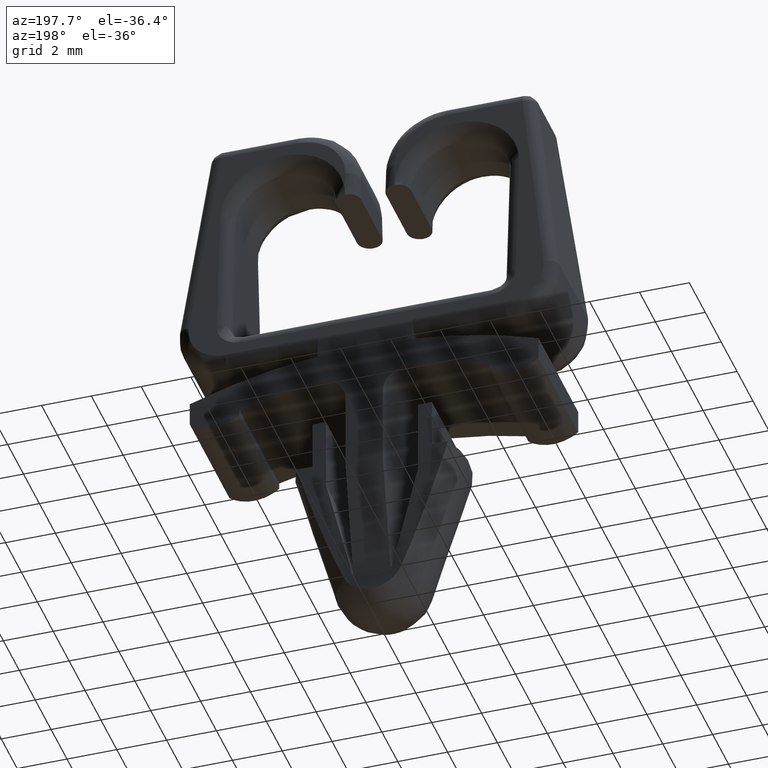
[diagram: clean part render]
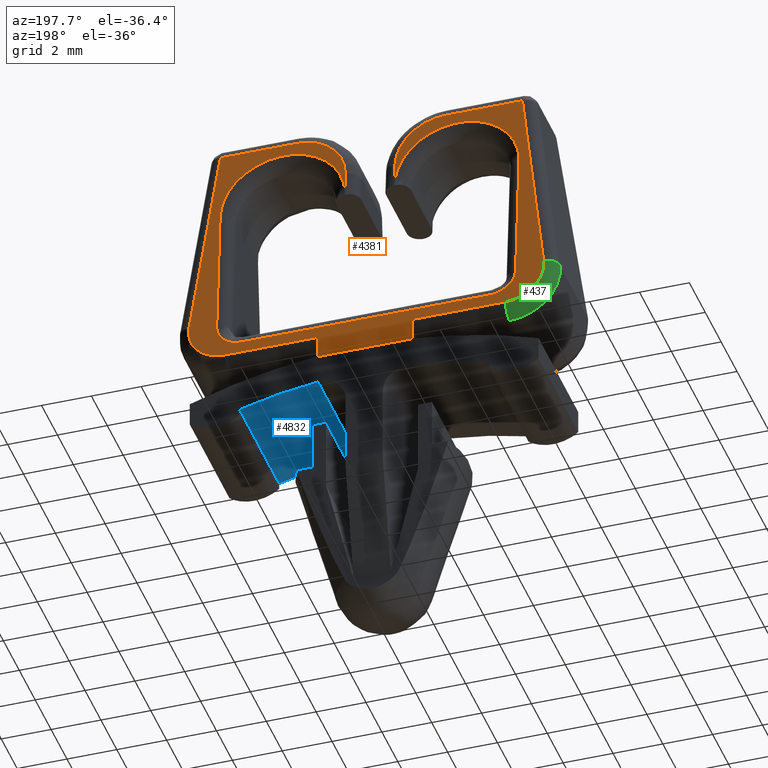
[diagram: same view with three faces highlighted in distinct colors, each labeled with its STEP entity id]
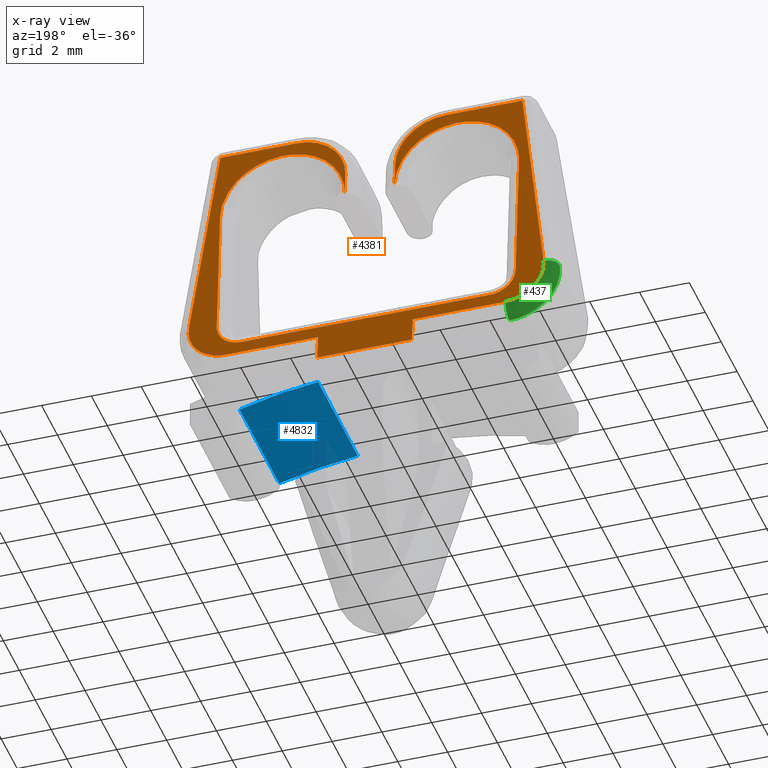
[diagram: x-ray of the same camera — body ghosted, the three highlighted faces saturated]
A machine part, auxiliary view with three faces highlighted in distinct colors.
The next image is the same camera in x-ray (body ghosted, the three faces saturated) — at least one of them is partly hidden behind the body in this view.
Their STEP definitions:

[orange] entity #4381 — the highlighted face is a freeform B-spline surface patch.
#58=CARTESIAN_POINT('',(-1.000000000000014,1.817478079133525,6.038521504060430));
#59=VERTEX_POINT('',#58);
#67=CARTESIAN_POINT('',(-1.000000000000028,1.740205398863250,7.038521504060429));
#68=VERTEX_POINT('',#67);
#69=CARTESIAN_POINT('',(-1.000000000000028,1.740205398863250,7.038521504060429));
#70=CARTESIAN_POINT('',(-1.000000000000014,1.817478079133525,6.038521504060430));
#71=QUASI_UNIFORM_CURVE('',1,(#69,#70),.UNSPECIFIED.,.F.,.U.);
#72=EDGE_CURVE('',#68,#59,#71,.T.);
#150=CARTESIAN_POINT('',(-3.0,1.585660038322590,9.038521504060530));
#151=VERTEX_POINT('',#150);
#183=CARTESIAN_POINT('',(-3.0,1.585660038322590,9.038521504060530));
#184=CARTESIAN_POINT('',(-2.171572875253808,1.585660038322517,9.038521504060428));
#185=CARTESIAN_POINT('',(-1.585786437626903,1.630925326423954,8.452735066433521));
#186=CARTESIAN_POINT('',(-1.0,1.676190614525392,7.866948628806616));
#187=CARTESIAN_POINT('',(-1.000000000000028,1.740205398863250,7.038521504060429));
#195=(BOUNDED_CURVE()B_SPLINE_CURVE(2,(#183,#184,#185,#186,#187),.UNSPECIFIED.,.F.,.U.)B_SPLINE_CURVE_WITH_KNOTS((3,2,3),(0.0,0.500000000000000,1.0),.UNSPECIFIED.)CURVE()GEOMETRIC_REPRESENTATION_ITEM()RATIONAL_B_SPLINE_CURVE((1.0,0.923879532511287,1.0,0.923879532511287,1.0))REPRESENTATION_ITEM(''));
#196=EDGE_CURVE('',#151,#68,#195,.T.);
#215=CARTESIAN_POINT('',(-6.059603151179149,1.585660036844620,9.038521523187201));
#216=VERTEX_POINT('',#215);
#238=CARTESIAN_POINT('',(-6.059603151179149,1.585660036844620,9.038521523187201));
#239=CARTESIAN_POINT('',(-3.0,1.585660038322590,9.038521504060530));
#240=QUASI_UNIFORM_CURVE('',1,(#238,#239),.UNSPECIFIED.,.F.,.U.);
#241=EDGE_CURVE('',#216,#151,#240,.T.);
#316=CARTESIAN_POINT('',(-7.117317814101700,2.227843778269155,0.727903343800175));
#317=VERTEX_POINT('',#316);
#339=CARTESIAN_POINT('',(-7.117317814101700,2.227843778269155,0.727903343800175));
#340=CARTESIAN_POINT('',(-6.059603151179149,1.585660036844620,9.038521523187201));
#341=QUASI_UNIFORM_CURVE('',1,(#339,#340),.UNSPECIFIED.,.F.,.U.);
#342=EDGE_CURVE('',#317,#216,#341,.T.);
#385=CARTESIAN_POINT('',(-5.629321000000000,2.358386841025865,-0.961478495939569));
#386=VERTEX_POINT('',#385);
#420=CARTESIAN_POINT('',(-5.629321000000000,2.358386841025865,-0.961478495939569));
#421=CARTESIAN_POINT('',(-6.307016277235701,2.358386841025810,-0.961478495939571));
#422=CARTESIAN_POINT('',(-6.754948105130632,2.319089449952488,-0.452923713889223));
#423=CARTESIAN_POINT('',(-7.202879933025565,2.279792058879166,0.055631068161125));
#424=CARTESIAN_POINT('',(-7.117317814101700,2.227843778269155,0.727903343800175));
#432=(BOUNDED_CURVE()B_SPLINE_CURVE(2,(#420,#421,#422,#423,#424),.UNSPECIFIED.,.F.,.U.)B_SPLINE_CURVE_WITH_KNOTS((3,2,3),(0.0,0.500000000000000,1.0),.UNSPECIFIED.)CURVE()GEOMETRIC_REPRESENTATION_ITEM()RATIONAL_B_SPLINE_CURVE((1.0,0.911307708360108,1.0,0.911307708360108,1.0))REPRESENTATION_ITEM(''));
#433=EDGE_CURVE('',#386,#317,#432,.T.);
#454=CARTESIAN_POINT('',(-1.900000000000000,2.358386841025865,-0.961478495939569));
#455=VERTEX_POINT('',#454);
#477=CARTESIAN_POINT('',(-1.900000000000000,2.358386841025865,-0.961478495939569));
#478=CARTESIAN_POINT('',(-5.629321000000000,2.358386841025865,-0.961478495939569));
#479=QUASI_UNIFORM_CURVE('',1,(#477,#478),.UNSPECIFIED.,.F.,.U.);
#480=EDGE_CURVE('',#455,#386,#479,.T.);
#593=CARTESIAN_POINT('',(6.0,1.817478079133575,6.038521504060430));
#594=VERTEX_POINT('',#593);
#654=CARTESIAN_POINT('',(1.0,1.817478079133525,6.038521504060430));
#655=VERTEX_POINT('',#654);
#669=CARTESIAN_POINT('',(6.0,1.817478079133575,6.038521504060430));
#670=CARTESIAN_POINT('',(6.0,1.624296378457708,8.538521504060432));
#671=CARTESIAN_POINT('',(3.500000000000000,1.624296378457708,8.538521504060432));
#672=CARTESIAN_POINT('',(1.0,1.624296378457708,8.538521504060432));
#673=CARTESIAN_POINT('',(1.0,1.817478079133525,6.038521504060431));
#681=(BOUNDED_CURVE()B_SPLINE_CURVE(2,(#669,#670,#671,#672,#673),.UNSPECIFIED.,.F.,.U.)B_SPLINE_CURVE_WITH_KNOTS((3,2,3),(0.0,0.500000000000000,1.0),.UNSPECIFIED.)CURVE()GEOMETRIC_REPRESENTATION_ITEM()RATIONAL_B_SPLINE_CURVE((1.0,0.707106781186547,1.0,0.707106781186547,1.0))REPRESENTATION_ITEM(''));
#682=EDGE_CURVE('',#594,#655,#681,.T.);
#701=CARTESIAN_POINT('',(6.0,2.242477820620375,0.538521504060430));
#702=VERTEX_POINT('',#701);
#726=CARTESIAN_POINT('',(6.0,2.242477820620375,0.538521504060430));
#727=CARTESIAN_POINT('',(6.0,1.817478079133575,6.038521504060430));
#728=QUASI_UNIFORM_CURVE('',1,(#726,#727),.UNSPECIFIED.,.F.,.U.);
#729=EDGE_CURVE('',#702,#594,#728,.T.);
#940=CARTESIAN_POINT('',(5.0,2.319750500890700,-0.461478495939572));
#941=VERTEX_POINT('',#940);
#971=CARTESIAN_POINT('',(5.0,2.319750500890700,-0.461478495939572));
#972=CARTESIAN_POINT('',(6.0,2.319750500890647,-0.461478495939572));
#973=CARTESIAN_POINT('',(6.0,2.242477820620375,0.538521504060430));
#981=(BOUNDED_CURVE()B_SPLINE_CURVE(2,(#971,#972,#973),.UNSPECIFIED.,.F.,.U.)CURVE()GEOMETRIC_REPRESENTATION_ITEM()QUASI_UNIFORM_CURVE()RATIONAL_B_SPLINE_CURVE((1.0,0.707106781186548,1.0))REPRESENTATION_ITEM(''));
#982=EDGE_CURVE('',#941,#702,#981,.T.);
#1001=CARTESIAN_POINT('',(-5.0,2.319750500890700,-0.461478495939574));
#1002=VERTEX_POINT('',#1001);
#1024=CARTESIAN_POINT('',(-5.0,2.319750500890700,-0.461478495939574));
#1025=CARTESIAN_POINT('',(5.0,2.319750500890700,-0.461478495939572));
#1026=QUASI_UNIFORM_CURVE('',1,(#1024,#1025),.UNSPECIFIED.,.F.,.U.);
#1027=EDGE_CURVE('',#1002,#941,#1026,.T.);
#1334=CARTESIAN_POINT('',(-6.0,2.242477820620375,0.538521504060431));
#1335=VERTEX_POINT('',#1334);
#1369=CARTESIAN_POINT('',(-6.0,2.242477820620375,0.538521504060431));
#1370=CARTESIAN_POINT('',(-5.999999999999999,2.319750500890647,-0.461478495939572));
#1371=CARTESIAN_POINT('',(-5.0,2.319750500890700,-0.461478495939574));
#1379=(BOUNDED_CURVE()B_SPLINE_CURVE(2,(#1369,#1370,#1371),.UNSPECIFIED.,.F.,.U.)CURVE()GEOMETRIC_REPRESENTATION_ITEM()QUASI_UNIFORM_CURVE()RATIONAL_B_SPLINE_CURVE((1.0,0.707106781186547,1.0))REPRESENTATION_ITEM(''));
#1380=EDGE_CURVE('',#1335,#1002,#1379,.T.);
#1399=CARTESIAN_POINT('',(-6.0,1.817478079133575,6.038521504060430));
#1400=VERTEX_POINT('',#1399);
#1424=CARTESIAN_POINT('',(-6.0,1.817478079133575,6.038521504060430));
#1425=CARTESIAN_POINT('',(-6.0,2.242477820620375,0.538521504060431));
#1426=QUASI_UNIFORM_CURVE('',1,(#1424,#1425),.UNSPECIFIED.,.F.,.U.);
#1427=EDGE_CURVE('',#1400,#1335,#1426,.T.);
#1583=CARTESIAN_POINT('',(-1.000000000000014,1.817478079133525,6.038521504060430));
#1584=CARTESIAN_POINT('',(-1.000000268634503,1.624296368078655,8.538521638377675));
#1585=CARTESIAN_POINT('',(-3.500000134317255,1.624296378457708,8.538521504060428));
#1586=CARTESIAN_POINT('',(-6.000000000000001,1.624296388836762,8.538521369743181));
#1587=CARTESIAN_POINT('',(-6.0,1.817478079133575,6.038521504060430));
#1595=(BOUNDED_CURVE()B_SPLINE_CURVE(2,(#1583,#1584,#1585,#1586,#1587),.UNSPECIFIED.,.F.,.U.)B_SPLINE_CURVE_WITH_KNOTS((3,2,3),(0.0,0.500000000000000,1.0),.UNSPECIFIED.)CURVE()GEOMETRIC_REPRESENTATION_ITEM()RATIONAL_B_SPLINE_CURVE((1.0,0.707106800181875,1.0,0.707106800181875,1.0))REPRESENTATION_ITEM(''));
#1596=EDGE_CURVE('',#59,#1400,#1595,.T.);
#1628=CARTESIAN_POINT('',(1.900000000000000,2.358386841025865,-0.961478495939569));
#1629=VERTEX_POINT('',#1628);
#1647=CARTESIAN_POINT('',(5.629321000000000,2.358386841025865,-0.961478495939573));
#1648=VERTEX_POINT('',#1647);
#1649=CARTESIAN_POINT('',(5.629321000000000,2.358386841025865,-0.961478495939573));
#1650=CARTESIAN_POINT('',(1.900000000000000,2.358386841025865,-0.961478495939569));
#1651=QUASI_UNIFORM_CURVE('',1,(#1649,#1650),.UNSPECIFIED.,.F.,.U.);
#1652=EDGE_CURVE('',#1648,#1629,#1651,.T.);
#1717=CARTESIAN_POINT('',(7.117318095254539,2.227843807725900,0.727902962595022));
#1718=VERTEX_POINT('',#1717);
#1750=CARTESIAN_POINT('',(7.117318095254539,2.227843807725900,0.727902962595022));
#1751=CARTESIAN_POINT('',(7.202879794710290,2.279792081162346,0.055630779790372));
#1752=CARTESIAN_POINT('',(6.754947978133050,2.319089461094078,-0.452923858074600));
#1753=CARTESIAN_POINT('',(6.307016161555812,2.358386841025809,-0.961478495939571));
#1754=CARTESIAN_POINT('',(5.629321000000000,2.358386841025865,-0.961478495939573));
#1762=(BOUNDED_CURVE()B_SPLINE_CURVE(2,(#1750,#1751,#1752,#1753,#1754),.UNSPECIFIED.,.F.,.U.)B_SPLINE_CURVE_WITH_KNOTS((3,2,3),(0.0,0.500000000000000,1.0),.UNSPECIFIED.)CURVE()GEOMETRIC_REPRESENTATION_ITEM()RATIONAL_B_SPLINE_CURVE((1.0,0.911307734729790,1.0,0.911307734729790,1.0))REPRESENTATION_ITEM(''));
#1763=EDGE_CURVE('',#1718,#1648,#1762,.T.);
#1782=CARTESIAN_POINT('',(6.059603000000000,1.585660038322590,9.038521504060530));
#1783=VERTEX_POINT('',#1782);
#1805=CARTESIAN_POINT('',(6.059603000000000,1.585660038322590,9.038521504060530));
#1806=CARTESIAN_POINT('',(7.117318095254539,2.227843807725900,0.727902962595022));
#1807=QUASI_UNIFORM_CURVE('',1,(#1805,#1806),.UNSPECIFIED.,.F.,.U.);
#1808=EDGE_CURVE('',#1783,#1718,#1807,.T.);
#1883=CARTESIAN_POINT('',(2.999999999999960,1.585660038322595,9.038521504060432));
#1884=VERTEX_POINT('',#1883);
#1906=CARTESIAN_POINT('',(2.999999999999960,1.585660038322595,9.038521504060432));
#1907=CARTESIAN_POINT('',(6.059603000000000,1.585660038322590,9.038521504060530));
#1908=QUASI_UNIFORM_CURVE('',1,(#1906,#1907),.UNSPECIFIED.,.F.,.U.);
#1909=EDGE_CURVE('',#1884,#1783,#1908,.T.);
#1952=CARTESIAN_POINT('',(0.999999999999958,1.740205398863250,7.038521504060429));
#1953=VERTEX_POINT('',#1952);
#1985=CARTESIAN_POINT('',(0.999999999999958,1.740205398863250,7.038521504060429));
#1986=CARTESIAN_POINT('',(0.999999999999960,1.676190614525392,7.866948628806617));
#1987=CARTESIAN_POINT('',(1.585786437626862,1.630925326423954,8.452735066433519));
#1988=CARTESIAN_POINT('',(2.171572875253768,1.585660038322517,9.038521504060428));
#1989=CARTESIAN_POINT('',(2.999999999999960,1.585660038322595,9.038521504060432));
#1997=(BOUNDED_CURVE()B_SPLINE_CURVE(2,(#1985,#1986,#1987,#1988,#1989),.UNSPECIFIED.,.F.,.U.)B_SPLINE_CURVE_WITH_KNOTS((3,2,3),(0.0,0.500000000000000,1.0),.UNSPECIFIED.)CURVE()GEOMETRIC_REPRESENTATION_ITEM()RATIONAL_B_SPLINE_CURVE((1.0,0.923879532511295,1.0,0.923879532511295,1.0))REPRESENTATION_ITEM(''));
#1998=EDGE_CURVE('',#1953,#1884,#1997,.T.);
#2042=CARTESIAN_POINT('',(1.0,1.817478079133525,6.038521504060430));
#2043=CARTESIAN_POINT('',(0.999999999999958,1.740205398863250,7.038521504060429));
#2044=QUASI_UNIFORM_CURVE('',1,(#2042,#2043),.UNSPECIFIED.,.F.,.U.);
#2045=EDGE_CURVE('',#655,#1953,#2044,.T.);
#4320=CARTESIAN_POINT('',(-1.899990384634840,2.437559000000000,-1.986059999999910));
#4321=VERTEX_POINT('',#4320);
#4327=CARTESIAN_POINT('',(1.900011192317365,2.437559000000000,-1.986059999999910));
#4328=VERTEX_POINT('',#4327);
#4329=CARTESIAN_POINT('',(1.900011192317365,2.437559000000000,-1.986059999999910));
#4330=CARTESIAN_POINT('',(-1.899990384634840,2.437559000000000,-1.986059999999910));
#4331=QUASI_UNIFORM_CURVE('',1,(#4329,#4330),.UNSPECIFIED.,.F.,.U.);
#4332=EDGE_CURVE('',#4328,#4321,#4331,.T.);
#4344=CARTESIAN_POINT('',(-7.841387659281606,2.480111351558475,-2.536737825715327));
#4345=CARTESIAN_POINT('',(-7.841387659281606,1.543107662436443,9.589199644604937));
#4346=CARTESIAN_POINT('',(7.841388671904411,2.480111351558475,-2.536737825715327));
#4347=CARTESIAN_POINT('',(7.841388671904411,1.543107662436443,9.589199644604937));
#4348=B_SPLINE_SURFACE_WITH_KNOTS('',1,1,((#4344,#4346),(#4345,#4347)),.UNSPECIFIED.,.F.,.F.,.U.,(2,2),(2,2),(0.0,12.162085982574920),(0.0,15.682776331186011),.UNSPECIFIED.);
#4349=ORIENTED_EDGE('',*,*,#1652,.T.);
#4350=CARTESIAN_POINT('',(1.900011192317365,2.437559000000000,-1.986059999999910));
#4351=CARTESIAN_POINT('',(1.900000000000000,2.358386841025865,-0.961478495939569));
#4352=QUASI_UNIFORM_CURVE('',1,(#4350,#4351),.UNSPECIFIED.,.F.,.U.);
#4353=EDGE_CURVE('',#4328,#1629,#4352,.T.);
#4354=ORIENTED_EDGE('',*,*,#4353,.F.);
#4355=ORIENTED_EDGE('',*,*,#4332,.T.);
#4356=CARTESIAN_POINT('',(-1.900000000000000,2.358386841025865,-0.961478495939569));
#4357=CARTESIAN_POINT('',(-1.899990384634840,2.437559000000000,-1.986059999999910));
#4358=QUASI_UNIFORM_CURVE('',1,(#4356,#4357),.UNSPECIFIED.,.F.,.U.);
#4359=EDGE_CURVE('',#455,#4321,#4358,.T.);
#4360=ORIENTED_EDGE('',*,*,#4359,.F.);
#4361=ORIENTED_EDGE('',*,*,#480,.T.);
#4362=ORIENTED_EDGE('',*,*,#433,.T.);
#4363=ORIENTED_EDGE('',*,*,#342,.T.);
#4364=ORIENTED_EDGE('',*,*,#241,.T.);
#4365=ORIENTED_EDGE('',*,*,#196,.T.);
#4366=ORIENTED_EDGE('',*,*,#72,.T.);
#4367=ORIENTED_EDGE('',*,*,#1596,.T.);
#4368=ORIENTED_EDGE('',*,*,#1427,.T.);
#4369=ORIENTED_EDGE('',*,*,#1380,.T.);
#4370=ORIENTED_EDGE('',*,*,#1027,.T.);
#4371=ORIENTED_EDGE('',*,*,#982,.T.);
#4372=ORIENTED_EDGE('',*,*,#729,.T.);
#4373=ORIENTED_EDGE('',*,*,#682,.T.);
#4374=ORIENTED_EDGE('',*,*,#2045,.T.);
#4375=ORIENTED_EDGE('',*,*,#1998,.T.);
#4376=ORIENTED_EDGE('',*,*,#1909,.T.);
#4377=ORIENTED_EDGE('',*,*,#1808,.T.);
#4378=ORIENTED_EDGE('',*,*,#1763,.T.);
#4379=EDGE_LOOP('',(#4349,#4354,#4355,#4360,#4361,#4362,#4363,#4364,#4365,#4366,#4367,#4368,#4369,#4370,#4371,#4372,#4373,#4374,#4375,#4376,#4377,#4378));
#4380=FACE_OUTER_BOUND('',#4379,.T.);
#4381=ADVANCED_FACE('',(#4380),#4348,.T.);

[blue] entity #4832 — the highlighted face is a freeform B-spline surface patch.
#4257=CARTESIAN_POINT('',(1.851691310473590,-2.499999999999945,-3.194394314426300));
#4258=VERTEX_POINT('',#4257);
#4281=CARTESIAN_POINT('',(1.851691310473590,2.499999999999945,-3.194394314426300));
#4282=VERTEX_POINT('',#4281);
#4298=CARTESIAN_POINT('',(1.851691310473590,-2.499999999999945,-3.194394314426300));
#4299=CARTESIAN_POINT('',(1.851691310473590,2.499999999999945,-3.194394314426300));
#4300=QUASI_UNIFORM_CURVE('',1,(#4298,#4299),.UNSPECIFIED.,.F.,.U.);
#4301=EDGE_CURVE('',#4258,#4282,#4300,.T.);
#4552=CARTESIAN_POINT('',(5.000015949865410,-2.499999999999945,-3.799934293073455));
#4553=VERTEX_POINT('',#4552);
#4559=CARTESIAN_POINT('',(5.000015949865410,2.499999999999945,-3.799934293073455));
#4560=VERTEX_POINT('',#4559);
#4561=CARTESIAN_POINT('',(5.000015949865410,2.499999999999945,-3.799934293073455));
#4562=CARTESIAN_POINT('',(5.000015949865410,-2.499999999999945,-3.799934293073455));
#4563=QUASI_UNIFORM_CURVE('',1,(#4561,#4562),.UNSPECIFIED.,.F.,.U.);
#4564=EDGE_CURVE('',#4560,#4553,#4563,.T.);
#4788=CARTESIAN_POINT('',(1.692478045583643,2.624999999999942,-3.178825718243774));
#4789=CARTESIAN_POINT('',(1.692478045583643,-2.628124999999942,-3.178825718243774));
#4790=CARTESIAN_POINT('',(3.455564795433757,2.624999999999942,-3.343412808387348));
#4791=CARTESIAN_POINT('',(3.455564795433757,-2.628124999999943,-3.343412808387348));
#4792=CARTESIAN_POINT('',(5.153905558093220,2.624999999999943,-3.844613817592478));
#4793=CARTESIAN_POINT('',(5.153905558093220,-2.628124999999943,-3.844613817592478));
#4801=(BOUNDED_SURFACE()B_SPLINE_SURFACE(1,2,((#4788,#4790,#4792),(#4789,#4791,#4793)),.UNSPECIFIED.,.F.,.F.,.U.)B_SPLINE_SURFACE_WITH_KNOTS((2,2),(3,3),(0.0,5.253124999999885),(0.605020300781727,4.138488753402233),.UNSPECIFIED.)GEOMETRIC_REPRESENTATION_ITEM()RATIONAL_B_SPLINE_SURFACE(((0.997818870427355,0.992251246028238,0.996046054408459),(0.997818870427355,0.992251246028238,0.996046054408459)))REPRESENTATION_ITEM('')SURFACE());
#4802=CARTESIAN_POINT('',(5.000015949865414,-2.499999999999945,-3.799934293073442));
#4803=CARTESIAN_POINT('',(3.452611952171612,-2.499999999999945,-3.358042383746807));
#4804=CARTESIAN_POINT('',(1.851691310473590,-2.499999999999945,-3.194394314426300));
#4812=(BOUNDED_CURVE()B_SPLINE_CURVE(2,(#4802,#4803,#4804),.UNSPECIFIED.,.F.,.U.)CURVE()GEOMETRIC_REPRESENTATION_ITEM()QUASI_UNIFORM_CURVE()RATIONAL_B_SPLINE_CURVE((1.0,0.996117360694575,1.0))REPRESENTATION_ITEM(''));
#4813=EDGE_CURVE('',#4553,#4258,#4812,.T.);
#4814=ORIENTED_EDGE('',*,*,#4813,.T.);
#4815=ORIENTED_EDGE('',*,*,#4301,.T.);
#4816=CARTESIAN_POINT('',(5.000015949865414,2.499999999999945,-3.799934293073442));
#4817=CARTESIAN_POINT('',(3.452611952171612,2.499999999999945,-3.358042383746807));
#4818=CARTESIAN_POINT('',(1.851691310473590,2.499999999999945,-3.194394314426300));
#4826=(BOUNDED_CURVE()B_SPLINE_CURVE(2,(#4816,#4817,#4818),.UNSPECIFIED.,.F.,.U.)CURVE()GEOMETRIC_REPRESENTATION_ITEM()QUASI_UNIFORM_CURVE()RATIONAL_B_SPLINE_CURVE((1.0,0.996117360694575,1.0))REPRESENTATION_ITEM(''));
#4827=EDGE_CURVE('',#4560,#4282,#4826,.T.);
#4828=ORIENTED_EDGE('',*,*,#4827,.F.);
#4829=ORIENTED_EDGE('',*,*,#4564,.T.);
#4830=EDGE_LOOP('',(#4814,#4815,#4828,#4829));
#4831=FACE_OUTER_BOUND('',#4830,.T.);
#4832=ADVANCED_FACE('',(#4831),#4801,.F.);

[green] entity #437 — the highlighted face is a freeform B-spline surface patch.
#316=CARTESIAN_POINT('',(-7.117317814101700,2.227843778269155,0.727903343800175));
#317=VERTEX_POINT('',#316);
#318=CARTESIAN_POINT('',(-7.613316999999999,1.729329901668740,0.752509000000089));
#319=VERTEX_POINT('',#318);
#320=CARTESIAN_POINT('',(-7.117317814101700,2.227843778269157,0.727903343800174));
#321=CARTESIAN_POINT('',(-7.608538653474044,2.223041442093120,0.790051261527843));
#322=CARTESIAN_POINT('',(-7.613316999999999,1.729329901668740,0.752509000000089));
#330=(BOUNDED_CURVE()B_SPLINE_CURVE(2,(#320,#321,#322),.UNSPECIFIED.,.F.,.U.)CURVE()GEOMETRIC_REPRESENTATION_ITEM()QUASI_UNIFORM_CURVE()RATIONAL_B_SPLINE_CURVE((1.0,0.710537481514933,1.0))REPRESENTATION_ITEM(''));
#331=EDGE_CURVE('',#317,#319,#330,.T.);
#347=CARTESIAN_POINT('',(-5.629321000000000,1.859872955838125,-1.499999999999997));
#348=CARTESIAN_POINT('',(-5.912288549822763,1.859872955836860,-1.499999999999997));
#349=CARTESIAN_POINT('',(-6.194965685889008,1.856343057163981,-1.439091907397703));
#350=CARTESIAN_POINT('',(-6.710580127615377,1.842842381229273,-1.206138926042709));
#351=CARTESIAN_POINT('',(-6.943171826668341,1.832878834814295,-1.034218804897273));
#352=CARTESIAN_POINT('',(-7.317142453680052,1.808272294715308,-0.609635109635080));
#353=CARTESIAN_POINT('',(-7.458321086099244,1.793642480091679,-0.357198939051552));
#354=CARTESIAN_POINT('',(-7.624311274501060,1.762294896687328,0.183700868309234));
#355=CARTESIAN_POINT('',(-7.649042678125608,1.745597902088350,0.471806048402678));
#356=CARTESIAN_POINT('',(-7.613316752135590,1.729329893081420,0.752509119652988));
#357=CARTESIAN_POINT('',(-5.629321000000001,2.399999841027769,-1.499999999999997));
#358=CARTESIAN_POINT('',(-5.918219803456254,2.399999841025697,-1.499999999975099));
#359=CARTESIAN_POINT('',(-6.206712302110788,2.395087808255717,-1.436432478402611));
#360=CARTESIAN_POINT('',(-6.729923573908969,2.376412507036929,-1.194751962680714));
#361=CARTESIAN_POINT('',(-6.964201932881701,2.362666371274433,-1.016860685785150));
#362=CARTESIAN_POINT('',(-7.336375924284367,2.329007914498857,-0.581280391976238));
#363=CARTESIAN_POINT('',(-7.474107895695173,2.309121136951364,-0.323921937758917));
#364=CARTESIAN_POINT('',(-7.630632043303380,2.266900417275493,0.222464178627554));
#365=CARTESIAN_POINT('',(-7.649432398136497,2.244593100728316,0.511147274250909));
#366=CARTESIAN_POINT('',(-7.608538631973983,2.223041430798164,0.790051407697282));
#367=CARTESIAN_POINT('',(-5.629321000000000,2.358386841025812,-0.961478495939571));
#368=CARTESIAN_POINT('',(-5.841546662367072,2.358386841024596,-0.961478495923827));
#369=CARTESIAN_POINT('',(-6.053554514416734,2.354856942351663,-0.915797426487859));
#370=CARTESIAN_POINT('',(-6.440265345711554,2.341356266416964,-0.741082690471595));
#371=CARTESIAN_POINT('',(-6.614709120001275,2.331392720001984,-0.612142599612532));
#372=CARTESIAN_POINT('',(-6.895187090260020,2.306786179902992,-0.293704828165879));
#373=CARTESIAN_POINT('',(-7.001071064574381,2.292156365279366,-0.104377700228219));
#374=CARTESIAN_POINT('',(-7.125563705875846,2.260808781875015,0.301297155292333));
#375=CARTESIAN_POINT('',(-7.144112248449759,2.244111781126237,0.517376119945377));
#376=CARTESIAN_POINT('',(-7.117317814101692,2.227843778269107,0.727903343800167));
#384=(BOUNDED_SURFACE()B_SPLINE_SURFACE(3,2,((#347,#357,#367),(#348,#358,#368),(#349,#359,#369),(#350,#360,#370),(#351,#361,#371),(#352,#362,#372),(#353,#363,#373),(#354,#364,#374),(#355,#365,#375),(#356,#366,#376)),.UNSPECIFIED.,.F.,.F.,.U.)B_SPLINE_SURFACE_WITH_KNOTS((4,2,2,2,4),(3,3),(0.0,0.850303967430621,1.700607934861242,2.550911902291863,3.401215869722484),(0.0,1.0),.UNSPECIFIED.)GEOMETRIC_REPRESENTATION_ITEM()RATIONAL_B_SPLINE_SURFACE(((1.0,0.679322085567350,1.0),(1.0,0.679316888285826,1.0),(1.0,0.680186987619577,1.0),(1.0,0.683477276650934,1.0),(1.0,0.685899847023663,1.0),(1.0,0.691835530578352,1.0),(1.0,0.695344220330281,1.0),(1.0,0.702795647244849,1.0),(1.0,0.706734197643532,1.0),(1.0,0.710537483556641,1.0)))REPRESENTATION_ITEM('')SURFACE());
#385=CARTESIAN_POINT('',(-5.629321000000000,2.358386841025865,-0.961478495939569));
#386=VERTEX_POINT('',#385);
#387=CARTESIAN_POINT('',(-5.629321000000000,1.859872955838115,-1.500000000000000));
#388=VERTEX_POINT('',#387);
#389=CARTESIAN_POINT('',(-5.629321000000000,2.358386841025862,-0.961478495939569));
#390=CARTESIAN_POINT('',(-5.629321000000000,2.375220199076112,-1.179322085567365));
#391=CARTESIAN_POINT('',(-5.629321000000000,2.226793077956181,-1.339661042783695));
#392=CARTESIAN_POINT('',(-5.629321000000000,2.078365956836251,-1.500000000000026));
#393=CARTESIAN_POINT('',(-5.629321000000000,1.859872955838115,-1.500000000000000));
#401=(BOUNDED_CURVE()B_SPLINE_CURVE(2,(#389,#390,#391,#392,#393),.UNSPECIFIED.,.F.,.U.)B_SPLINE_CURVE_WITH_KNOTS((3,2,3),(0.0,0.500000000000000,1.0),.UNSPECIFIED.)CURVE()GEOMETRIC_REPRESENTATION_ITEM()RATIONAL_B_SPLINE_CURVE((1.0,0.916330204011442,1.0,0.916330204011442,1.0))REPRESENTATION_ITEM(''));
#402=EDGE_CURVE('',#386,#388,#401,.T.);
#403=ORIENTED_EDGE('',*,*,#402,.T.);
#404=CARTESIAN_POINT('',(-7.613316999999999,1.729329901668740,0.752509000000089));
#405=CARTESIAN_POINT('',(-7.727399533918321,1.781278178941359,-0.143854005118574));
#406=CARTESIAN_POINT('',(-7.130157100280313,1.820575567389743,-0.821927002559286));
#407=CARTESIAN_POINT('',(-6.532914666642305,1.859872955838128,-1.499999999999998));
#408=CARTESIAN_POINT('',(-5.629321000000000,1.859872955838128,-1.499999999999997));
#416=(BOUNDED_CURVE()B_SPLINE_CURVE(2,(#404,#405,#406,#407,#408),.UNSPECIFIED.,.F.,.U.)B_SPLINE_CURVE_WITH_KNOTS((3,2,3),(0.0,0.500000000000000,1.0),.UNSPECIFIED.)CURVE()GEOMETRIC_REPRESENTATION_ITEM()RATIONAL_B_SPLINE_CURVE((1.0,0.911307714572757,1.0,0.911307714572757,1.0))REPRESENTATION_ITEM(''));
#417=EDGE_CURVE('',#319,#388,#416,.T.);
#418=ORIENTED_EDGE('',*,*,#417,.F.);
#419=ORIENTED_EDGE('',*,*,#331,.F.);
#420=CARTESIAN_POINT('',(-5.629321000000000,2.358386841025865,-0.961478495939569));
#421=CARTESIAN_POINT('',(-6.307016277235701,2.358386841025810,-0.961478495939571));
#422=CARTESIAN_POINT('',(-6.754948105130632,2.319089449952488,-0.452923713889223));
#423=CARTESIAN_POINT('',(-7.202879933025565,2.279792058879166,0.055631068161125));
#424=CARTESIAN_POINT('',(-7.117317814101700,2.227843778269155,0.727903343800175));
#432=(BOUNDED_CURVE()B_SPLINE_CURVE(2,(#420,#421,#422,#423,#424),.UNSPECIFIED.,.F.,.U.)B_SPLINE_CURVE_WITH_KNOTS((3,2,3),(0.0,0.500000000000000,1.0),.UNSPECIFIED.)CURVE()GEOMETRIC_REPRESENTATION_ITEM()RATIONAL_B_SPLINE_CURVE((1.0,0.911307708360108,1.0,0.911307708360108,1.0))REPRESENTATION_ITEM(''));
#433=EDGE_CURVE('',#386,#317,#432,.T.);
#434=ORIENTED_EDGE('',*,*,#433,.F.);
#435=EDGE_LOOP('',(#403,#418,#419,#434));
#436=FACE_OUTER_BOUND('',#435,.T.);
#437=ADVANCED_FACE('',(#436),#384,.T.);